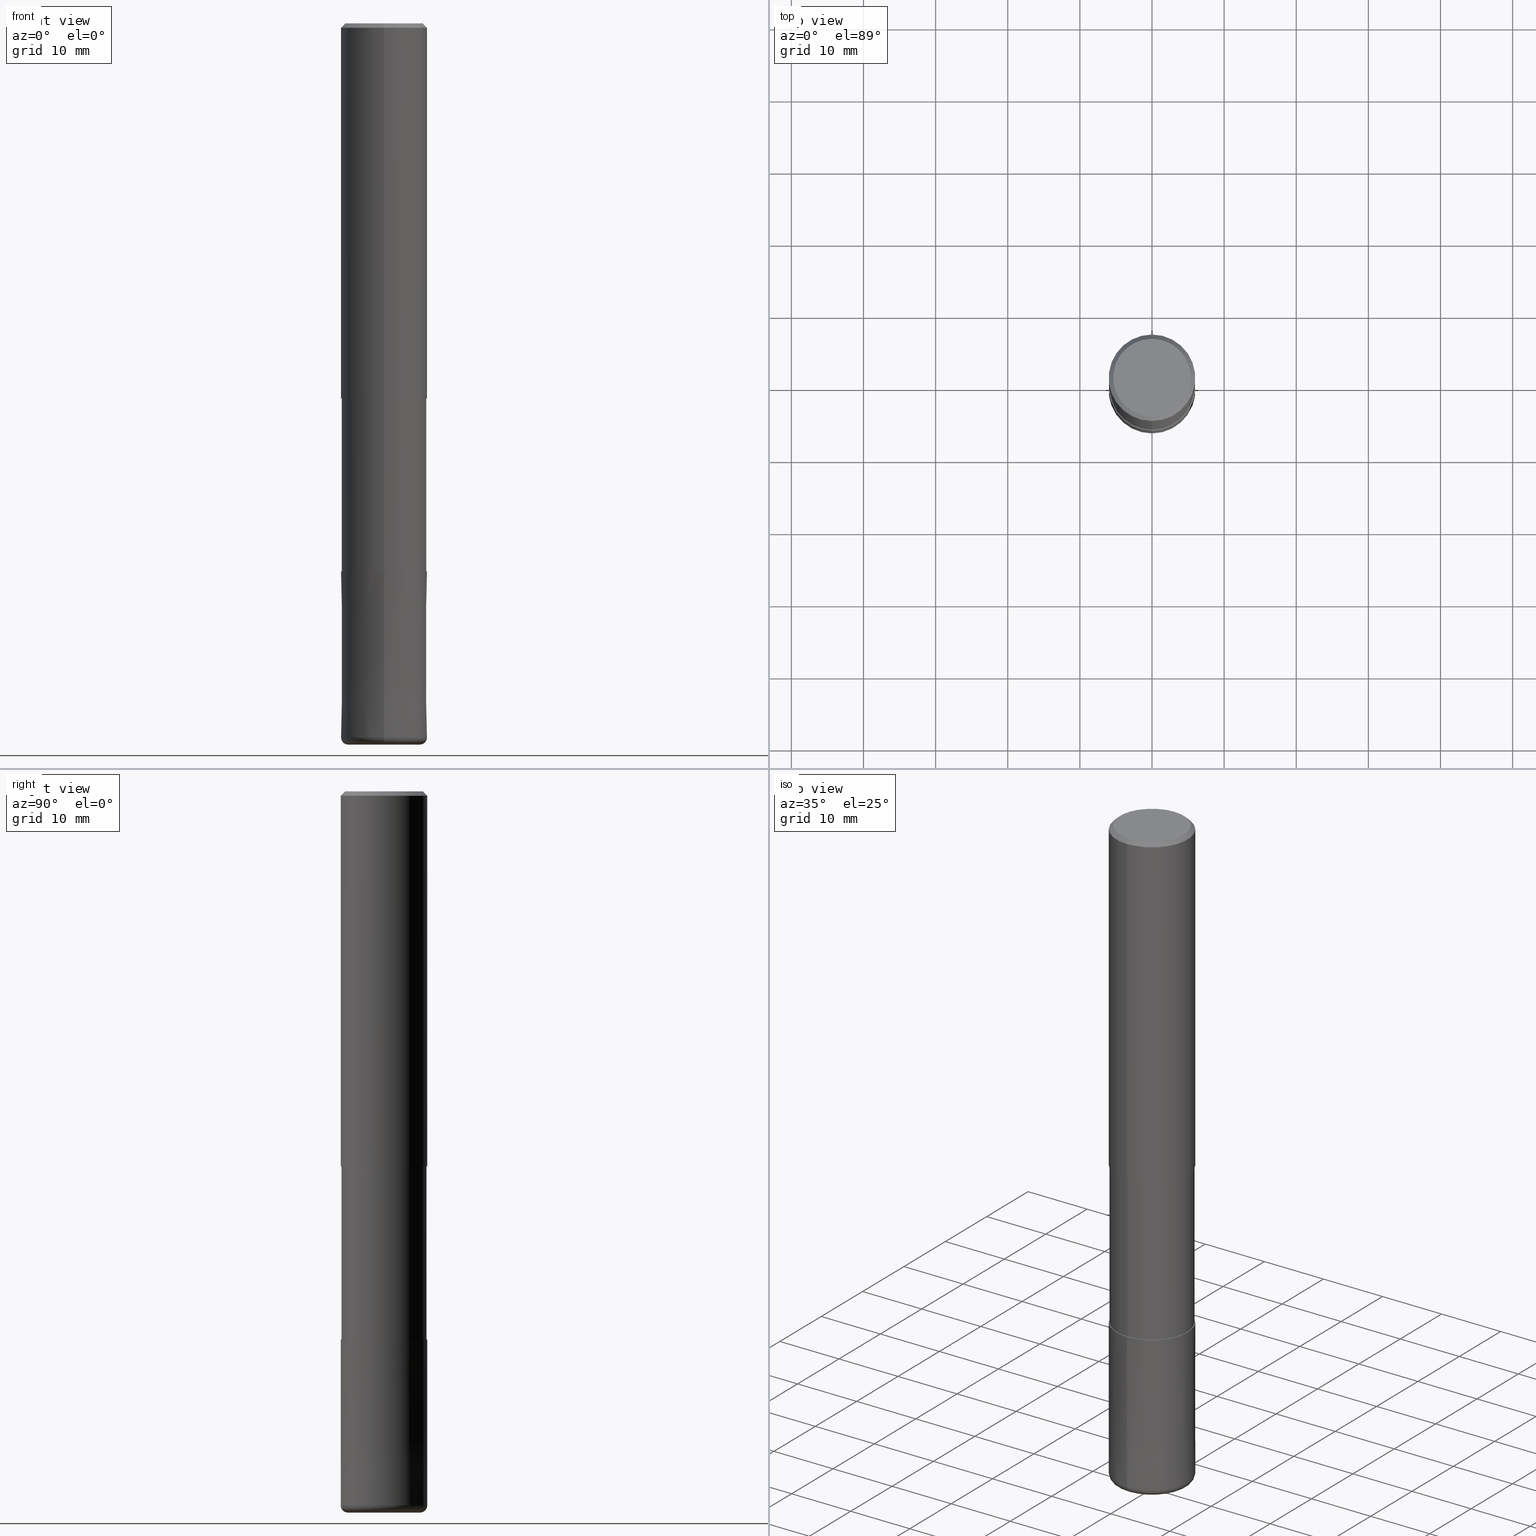
[diagram: canonical four-view strip — front | top / right | iso, engineering-drawing reading convention]
A machine part, canonical four-view strip (front | top / right | iso — engineering-drawing reading convention). The complete STEP part file that produces these views, byte-faithful:
ISO-10303-21;
HEADER;
FILE_DESCRIPTION(('no description'),'unknown implementation level');
FILE_NAME('CXLRS5120-10-48-Huellk.stp','  ',('CIMSOURCE GmbH'),('CADClick - KiM GmbH - www.kimweb.de'),'unknown preprocess','ACIS','unknown authorization');
FILE_SCHEMA(('automotive_design'));
ENDSEC;
DATA;
#1=MECHANICAL_DESIGN_GEOMETRIC_PRESENTATION_REPRESENTATION(' ',(#14,#15,#16,#17,#18,#19,#20,#21,#22,#23,#24,#25,#26,#27,#28,#29,#30,#31,#32,#33,#34,#35,#36,#37,#38,#39,#40,#41,#42,#43,#44,#45,#46,#47,#48,#49,#50,#51,#52,#53,#54,#55,#56,#57,#58,#59,#60,#61,#62,#63,#64,#65,#66,#67,#68,#69,#70,#71,#72,#73,#74,#75,#76,#77,#78,#79,#80,#81,#82,#83,#84,#85,#86,#87,#88,#89,#90,#91,#92,#93,#94,#95,#96,#97),#10);
#2=PRODUCT_DEFINITION_CONTEXT('',#98,'design');
#3=APPLICATION_PROTOCOL_DEFINITION('INTERNATIONAL STANDARD','automotive_design',1994,#98);
#4=PRODUCT_CATEGORY_RELATIONSHIP('NONE','NONE',#99,#100);
#5=SHAPE_DEFINITION_REPRESENTATION(#101,#102);
#6=PRODUCT_DEFINITION_CONTEXT('',#103,'design');
#7=APPLICATION_PROTOCOL_DEFINITION('INTERNATIONAL STANDARD','automotive_design',1994,#103);
#8=PRODUCT_CATEGORY_RELATIONSHIP('NONE','NONE',#104,#105);
#9=SHAPE_DEFINITION_REPRESENTATION(#106,#107);
#10= (GEOMETRIC_REPRESENTATION_CONTEXT(3)GLOBAL_UNCERTAINTY_ASSIGNED_CONTEXT((#110))GLOBAL_UNIT_ASSIGNED_CONTEXT((#112,#113,#114))REPRESENTATION_CONTEXT('NONE','WORKSPACE'));
#14=STYLED_ITEM('',(#116),#117);
#15=STYLED_ITEM('',(#118),#119);
#16=STYLED_ITEM('',(#120),#121);
#17=STYLED_ITEM('',(#122),#123);
#18=STYLED_ITEM('',(#124),#125);
#19=STYLED_ITEM('',(#126),#127);
#20=STYLED_ITEM('',(#128),#129);
#21=STYLED_ITEM('',(#130),#131);
#22=STYLED_ITEM('',(#132),#133);
#23=STYLED_ITEM('',(#134),#135);
#24=STYLED_ITEM('',(#136),#137);
#25=STYLED_ITEM('',(#138),#139);
#26=STYLED_ITEM('',(#140),#141);
#27=STYLED_ITEM('',(#142),#143);
#28=STYLED_ITEM('',(#144),#145);
#29=STYLED_ITEM('',(#146),#147);
#30=STYLED_ITEM('',(#148),#149);
#31=STYLED_ITEM('',(#150),#151);
#32=STYLED_ITEM('',(#152),#153);
#33=STYLED_ITEM('',(#154),#155);
#34=STYLED_ITEM('',(#156),#157);
#35=STYLED_ITEM('',(#158),#159);
#36=STYLED_ITEM('',(#160),#161);
#37=STYLED_ITEM('',(#162),#163);
#38=STYLED_ITEM('',(#164),#165);
#39=STYLED_ITEM('',(#166),#167);
#40=STYLED_ITEM('',(#168),#169);
#41=STYLED_ITEM('',(#170),#171);
#42=STYLED_ITEM('',(#172),#173);
#43=STYLED_ITEM('',(#174),#175);
#44=STYLED_ITEM('',(#176),#177);
#45=STYLED_ITEM('',(#178),#179);
#46=STYLED_ITEM('',(#180),#181);
#47=STYLED_ITEM('',(#182),#183);
#48=STYLED_ITEM('',(#184),#185);
#49=STYLED_ITEM('',(#186),#187);
#50=STYLED_ITEM('',(#188),#189);
#51=STYLED_ITEM('',(#190),#191);
#52=STYLED_ITEM('',(#192),#193);
#53=STYLED_ITEM('',(#194),#195);
#54=STYLED_ITEM('',(#196),#197);
#55=STYLED_ITEM('',(#198),#199);
#56=STYLED_ITEM('',(#200),#201);
#57=STYLED_ITEM('',(#202),#203);
#58=STYLED_ITEM('',(#204),#205);
#59=STYLED_ITEM('',(#206),#207);
#60=STYLED_ITEM('',(#208),#209);
#61=STYLED_ITEM('',(#210),#211);
#62=STYLED_ITEM('',(#212),#213);
#63=STYLED_ITEM('',(#214),#215);
#64=STYLED_ITEM('',(#216),#217);
#65=STYLED_ITEM('',(#218),#219);
#66=STYLED_ITEM('',(#220),#221);
#67=STYLED_ITEM('',(#222),#223);
#68=STYLED_ITEM('',(#224),#225);
#69=STYLED_ITEM('',(#226),#227);
#70=STYLED_ITEM('',(#228),#229);
#71=STYLED_ITEM('',(#230),#231);
#72=STYLED_ITEM('',(#232),#233);
#73=STYLED_ITEM('',(#234),#235);
#74=STYLED_ITEM('',(#236),#237);
#75=STYLED_ITEM('',(#238),#239);
#76=STYLED_ITEM('',(#240),#241);
#77=STYLED_ITEM('',(#242),#243);
#78=STYLED_ITEM('',(#244),#245);
#79=STYLED_ITEM('',(#246),#247);
#80=STYLED_ITEM('',(#248),#249);
#81=STYLED_ITEM('',(#250),#251);
#82=STYLED_ITEM('',(#252),#253);
#83=STYLED_ITEM('',(#254),#255);
#84=STYLED_ITEM('',(#256),#257);
#85=STYLED_ITEM('',(#258),#259);
#86=STYLED_ITEM('',(#260),#261);
#87=STYLED_ITEM('',(#262),#263);
#88=STYLED_ITEM('',(#264),#265);
#89=STYLED_ITEM('',(#266),#267);
#90=STYLED_ITEM('',(#268),#269);
#91=STYLED_ITEM('',(#270),#271);
#92=STYLED_ITEM('',(#272),#273);
#93=STYLED_ITEM('',(#274),#275);
#94=STYLED_ITEM('',(#276),#277);
#95=STYLED_ITEM('',(#278),#279);
#96=STYLED_ITEM('',(#280),#281);
#97=STYLED_ITEM('',(#282),#283);
#98=APPLICATION_CONTEXT(' ');
#99=PRODUCT_CATEGORY('part','NONE');
#100=PRODUCT_RELATED_PRODUCT_CATEGORY('detail',' ',(#284));
#101=PRODUCT_DEFINITION_SHAPE('NONE','NONE',#285);
#102=ADVANCED_BREP_SHAPE_REPRESENTATION('1',(#273,#286),#10);
#103=APPLICATION_CONTEXT(' ');
#104=PRODUCT_CATEGORY('part','NONE');
#105=PRODUCT_RELATED_PRODUCT_CATEGORY('detail',' ',(#287));
#106=PRODUCT_DEFINITION_SHAPE('NONE','NONE',#288);
#107=ADVANCED_BREP_SHAPE_REPRESENTATION('2',(#213,#289),#10);
#110=UNCERTAINTY_MEASURE_WITH_UNIT(LENGTH_MEASURE(1.0E-006),#112,'','');
#112= (CONVERSION_BASED_UNIT('MILLIMETRE',#292)LENGTH_UNIT()NAMED_UNIT(#295));
#113= (NAMED_UNIT(#297)PLANE_ANGLE_UNIT()SI_UNIT($,.RADIAN.));
#114= (NAMED_UNIT(#297)SOLID_ANGLE_UNIT()SI_UNIT($,.STERADIAN.));
#116=PRESENTATION_STYLE_ASSIGNMENT((#303));
#117=ADVANCED_FACE('',(#304),#305,.T.);
#118=PRESENTATION_STYLE_ASSIGNMENT((#306));
#119=EDGE_CURVE('',#261,#245,#307,.T.);
#120=PRESENTATION_STYLE_ASSIGNMENT((#308));
#121=EDGE_CURVE('',#197,#163,#309,.T.);
#122=PRESENTATION_STYLE_ASSIGNMENT((#310));
#123=VERTEX_POINT('',#311);
#124=PRESENTATION_STYLE_ASSIGNMENT((#312));
#125=EDGE_CURVE('',#129,#261,#313,.T.);
#126=PRESENTATION_STYLE_ASSIGNMENT((#314));
#127=EDGE_CURVE('',#147,#159,#315,.T.);
#128=PRESENTATION_STYLE_ASSIGNMENT((#316));
#129=VERTEX_POINT('',#317);
#130=PRESENTATION_STYLE_ASSIGNMENT((#318));
#131=VERTEX_POINT('',#319);
#132=PRESENTATION_STYLE_ASSIGNMENT((#320));
#133=EDGE_CURVE('',#275,#181,#321,.T.);
#134=PRESENTATION_STYLE_ASSIGNMENT((#322));
#135=VERTEX_POINT('',#323);
#136=PRESENTATION_STYLE_ASSIGNMENT((#324));
#137=EDGE_CURVE('',#155,#139,#325,.T.);
#138=PRESENTATION_STYLE_ASSIGNMENT((#326));
#139=VERTEX_POINT('',#327);
#140=PRESENTATION_STYLE_ASSIGNMENT((#328));
#141=EDGE_CURVE('',#123,#245,#329,.T.);
#142=PRESENTATION_STYLE_ASSIGNMENT((#330));
#143=ADVANCED_FACE('',(#331,#332),#333,.T.);
#144=PRESENTATION_STYLE_ASSIGNMENT((#334));
#145=EDGE_CURVE('',#153,#183,#335,.T.);
#146=PRESENTATION_STYLE_ASSIGNMENT((#336));
#147=VERTEX_POINT('',#337);
#148=PRESENTATION_STYLE_ASSIGNMENT((#338));
#149=EDGE_CURVE('',#199,#189,#339,.T.);
#150=PRESENTATION_STYLE_ASSIGNMENT((#340));
#151=EDGE_CURVE('',#139,#147,#341,.T.);
#152=PRESENTATION_STYLE_ASSIGNMENT((#342));
#153=VERTEX_POINT('',#343);
#154=PRESENTATION_STYLE_ASSIGNMENT((#344));
#155=VERTEX_POINT('',#345);
#156=PRESENTATION_STYLE_ASSIGNMENT((#346));
#157=ADVANCED_FACE('',(#347),#348,.T.);
#158=PRESENTATION_STYLE_ASSIGNMENT((#349));
#159=VERTEX_POINT('',#350);
#160=PRESENTATION_STYLE_ASSIGNMENT((#351));
#161=EDGE_CURVE('',#135,#173,#352,.T.);
#162=PRESENTATION_STYLE_ASSIGNMENT((#353));
#163=VERTEX_POINT('',#354);
#164=PRESENTATION_STYLE_ASSIGNMENT((#355));
#165=EDGE_CURVE('',#189,#181,#356,.T.);
#166=PRESENTATION_STYLE_ASSIGNMENT((#357));
#167=ADVANCED_FACE('',(#358),#359,.T.);
#168=PRESENTATION_STYLE_ASSIGNMENT((#360));
#169=ADVANCED_FACE('',(#361),#362,.T.);
#170=PRESENTATION_STYLE_ASSIGNMENT((#363));
#171=EDGE_CURVE('',#131,#187,#364,.T.);
#172=PRESENTATION_STYLE_ASSIGNMENT((#365));
#173=VERTEX_POINT('',#366);
#174=PRESENTATION_STYLE_ASSIGNMENT((#367));
#175=ADVANCED_FACE('',(#368),#369,.T.);
#176=PRESENTATION_STYLE_ASSIGNMENT((#370));
#177=ADVANCED_FACE('',(#371),#372,.F.);
#178=PRESENTATION_STYLE_ASSIGNMENT((#373));
#179=ADVANCED_FACE('',(#374,#375),#376,.T.);
#180=PRESENTATION_STYLE_ASSIGNMENT((#377));
#181=VERTEX_POINT('',#378);
#182=PRESENTATION_STYLE_ASSIGNMENT((#379));
#183=VERTEX_POINT('',#380);
#184=PRESENTATION_STYLE_ASSIGNMENT((#381));
#185=EDGE_CURVE('',#159,#147,#382,.T.);
#186=PRESENTATION_STYLE_ASSIGNMENT((#383));
#187=VERTEX_POINT('',#384);
#188=PRESENTATION_STYLE_ASSIGNMENT((#385));
#189=VERTEX_POINT('',#386);
#190=PRESENTATION_STYLE_ASSIGNMENT((#387));
#191=EDGE_CURVE('',#159,#251,#388,.T.);
#192=PRESENTATION_STYLE_ASSIGNMENT((#389));
#193=VERTEX_POINT('',#390);
#194=PRESENTATION_STYLE_ASSIGNMENT((#391));
#195=ADVANCED_FACE('',(#392),#393,.F.);
#196=PRESENTATION_STYLE_ASSIGNMENT((#394));
#197=VERTEX_POINT('',#395);
#198=PRESENTATION_STYLE_ASSIGNMENT((#396));
#199=VERTEX_POINT('',#397);
#200=PRESENTATION_STYLE_ASSIGNMENT((#398));
#201=EDGE_CURVE('',#163,#123,#399,.T.);
#202=PRESENTATION_STYLE_ASSIGNMENT((#400));
#203=EDGE_CURVE('',#255,#155,#401,.T.);
#204=PRESENTATION_STYLE_ASSIGNMENT((#402));
#205=ADVANCED_FACE('',(#403),#404,.T.);
#206=PRESENTATION_STYLE_ASSIGNMENT((#405));
#207=ADVANCED_FACE('',(#406,#407),#408,.T.);
#208=PRESENTATION_STYLE_ASSIGNMENT((#409));
#209=EDGE_CURVE('',#261,#129,#410,.T.);
#210=PRESENTATION_STYLE_ASSIGNMENT((#411));
#211=EDGE_CURVE('',#251,#139,#412,.T.);
#212=PRESENTATION_STYLE_ASSIGNMENT((#413));
#213=MANIFOLD_SOLID_BREP('2',#414);
#214=PRESENTATION_STYLE_ASSIGNMENT((#415));
#215=EDGE_CURVE('',#173,#135,#416,.T.);
#216=PRESENTATION_STYLE_ASSIGNMENT((#417));
#217=EDGE_CURVE('',#275,#199,#418,.T.);
#218=PRESENTATION_STYLE_ASSIGNMENT((#419));
#219=EDGE_CURVE('',#181,#275,#420,.T.);
#220=PRESENTATION_STYLE_ASSIGNMENT((#421));
#221=ADVANCED_FACE('',(#422),#423,.T.);
#222=PRESENTATION_STYLE_ASSIGNMENT((#424));
#223=ADVANCED_FACE('',(#425),#426,.T.);
#224=PRESENTATION_STYLE_ASSIGNMENT((#427));
#225=EDGE_CURVE('',#135,#183,#428,.T.);
#226=PRESENTATION_STYLE_ASSIGNMENT((#429));
#227=ADVANCED_FACE('',(#430),#431,.T.);
#228=PRESENTATION_STYLE_ASSIGNMENT((#432));
#229=ADVANCED_FACE('',(#433,#434),#435,.T.);
#230=PRESENTATION_STYLE_ASSIGNMENT((#436));
#231=EDGE_CURVE('',#197,#245,#437,.T.);
#232=PRESENTATION_STYLE_ASSIGNMENT((#438));
#233=EDGE_CURVE('',#251,#255,#439,.T.);
#234=PRESENTATION_STYLE_ASSIGNMENT((#440));
#235=ADVANCED_FACE('',(#441),#442,.T.);
#236=PRESENTATION_STYLE_ASSIGNMENT((#443));
#237=EDGE_CURVE('',#189,#199,#444,.T.);
#238=PRESENTATION_STYLE_ASSIGNMENT((#445));
#239=VERTEX_POINT('',#446);
#240=PRESENTATION_STYLE_ASSIGNMENT((#447));
#241=EDGE_CURVE('',#131,#193,#448,.T.);
#242=PRESENTATION_STYLE_ASSIGNMENT((#449));
#243=EDGE_CURVE('',#155,#255,#450,.T.);
#244=PRESENTATION_STYLE_ASSIGNMENT((#451));
#245=VERTEX_POINT('',#452);
#246=PRESENTATION_STYLE_ASSIGNMENT((#453));
#247=EDGE_CURVE('',#239,#193,#454,.T.);
#248=PRESENTATION_STYLE_ASSIGNMENT((#455));
#249=EDGE_CURVE('',#239,#187,#456,.T.);
#250=PRESENTATION_STYLE_ASSIGNMENT((#457));
#251=VERTEX_POINT('',#458);
#252=PRESENTATION_STYLE_ASSIGNMENT((#459));
#253=EDGE_CURVE('',#193,#239,#460,.T.);
#254=PRESENTATION_STYLE_ASSIGNMENT((#461));
#255=VERTEX_POINT('',#462);
#256=PRESENTATION_STYLE_ASSIGNMENT((#463));
#257=EDGE_CURVE('',#153,#173,#464,.T.);
#258=PRESENTATION_STYLE_ASSIGNMENT((#465));
#259=ADVANCED_FACE('',(#466),#467,.T.);
#260=PRESENTATION_STYLE_ASSIGNMENT((#468));
#261=VERTEX_POINT('',#469);
#262=PRESENTATION_STYLE_ASSIGNMENT((#470));
#263=ADVANCED_FACE('',(#471),#472,.T.);
#264=PRESENTATION_STYLE_ASSIGNMENT((#473));
#265=EDGE_CURVE('',#123,#163,#474,.T.);
#266=PRESENTATION_STYLE_ASSIGNMENT((#475));
#267=ADVANCED_FACE('',(#476),#477,.T.);
#268=PRESENTATION_STYLE_ASSIGNMENT((#478));
#269=ADVANCED_FACE('',(#479),#480,.T.);
#270=PRESENTATION_STYLE_ASSIGNMENT((#481));
#271=EDGE_CURVE('',#183,#153,#482,.T.);
#272=PRESENTATION_STYLE_ASSIGNMENT((#483));
#273=MANIFOLD_SOLID_BREP('1',#484);
#274=PRESENTATION_STYLE_ASSIGNMENT((#485));
#275=VERTEX_POINT('',#486);
#276=PRESENTATION_STYLE_ASSIGNMENT((#487));
#277=EDGE_CURVE('',#245,#197,#488,.T.);
#278=PRESENTATION_STYLE_ASSIGNMENT((#489));
#279=EDGE_CURVE('',#139,#251,#490,.T.);
#280=PRESENTATION_STYLE_ASSIGNMENT((#491));
#281=EDGE_CURVE('',#187,#131,#492,.T.);
#282=PRESENTATION_STYLE_ASSIGNMENT((#493));
#283=EDGE_CURVE('',#197,#129,#494,.T.);
#284=PRODUCT('1','1','PART-1-DESC',(#495));
#285=PRODUCT_DEFINITION('NONE','NONE',#496,#2);
#286=AXIS2_PLACEMENT_3D('',#497,#498,#499);
#287=PRODUCT('2','2','PART-2-DESC',(#500));
#288=PRODUCT_DEFINITION('NONE','NONE',#501,#6);
#289=AXIS2_PLACEMENT_3D('',#502,#503,#504);
#292=LENGTH_MEASURE_WITH_UNIT(LENGTH_MEASURE(1.0),#505);
#295=DIMENSIONAL_EXPONENTS(1.0,0.0,0.0,0.0,0.0,0.0,0.0);
#297=DIMENSIONAL_EXPONENTS(0.0,0.0,0.0,0.0,0.0,0.0,0.0);
#303=SURFACE_STYLE_USAGE(.BOTH.,#506);
#304=FACE_OUTER_BOUND('',#507,.T.);
#305=CYLINDRICAL_SURFACE('',#508,5.89995);
#306=CURVE_STYLE('',#509,POSITIVE_LENGTH_MEASURE(1.0E-006),#510);
#307=LINE('',#511,#512);
#308=CURVE_STYLE('',#513,POSITIVE_LENGTH_MEASURE(1.0E-006),#514);
#309=CIRCLE('',#515,0.999999999999989);
#310=POINT_STYLE(' ',#516,POSITIVE_LENGTH_MEASURE(1.0E-006),#517);
#311=CARTESIAN_POINT('',(0.0,5.0,-100.0));
#312=CURVE_STYLE('',#518,POSITIVE_LENGTH_MEASURE(1.0E-006),#519);
#313=CIRCLE('',#520,5.9999);
#314=CURVE_STYLE('',#521,POSITIVE_LENGTH_MEASURE(1.0E-006),#522);
#315=CIRCLE('',#523,6.0);
#316=POINT_STYLE(' ',#524,POSITIVE_LENGTH_MEASURE(1.0E-006),#525);
#317=CARTESIAN_POINT('',(7.34751566229888E-016,-5.9999,-76.0));
#318=POINT_STYLE(' ',#526,POSITIVE_LENGTH_MEASURE(1.0E-006),#527);
#319=CARTESIAN_POINT('',(7.22511625723433E-016,-5.89995,-76.0));
#320=CURVE_STYLE('',#528,POSITIVE_LENGTH_MEASURE(1.0E-006),#529);
#321=CIRCLE('',#530,2.7);
#322=POINT_STYLE(' ',#531,POSITIVE_LENGTH_MEASURE(1.0E-006),#532);
#323=CARTESIAN_POINT('',(3.30643715532042E-016,-2.7,-100.0));
#324=CURVE_STYLE('',#533,POSITIVE_LENGTH_MEASURE(1.0E-006),#534);
#325=LINE('',#535,#536);
#326=POINT_STYLE(' ',#537,POSITIVE_LENGTH_MEASURE(1.0E-006),#538);
#327=CARTESIAN_POINT('',(0.0,6.0,-0.600000000000001));
#328=CURVE_STYLE('',#539,POSITIVE_LENGTH_MEASURE(1.0E-006),#540);
#329=CIRCLE('',#541,0.999999999999989);
#330=SURFACE_STYLE_USAGE(.BOTH.,#542);
#331=FACE_BOUND('',#543,.T.);
#332=FACE_OUTER_BOUND('',#544,.T.);
#333=PLANE('',#545);
#334=CURVE_STYLE('',#546,POSITIVE_LENGTH_MEASURE(1.0E-006),#547);
#335=CIRCLE('',#548,2.7);
#336=POINT_STYLE(' ',#549,POSITIVE_LENGTH_MEASURE(1.0E-006),#550);
#337=CARTESIAN_POINT('',(0.0,6.0,-52.0));
#338=CURVE_STYLE('',#551,POSITIVE_LENGTH_MEASURE(1.0E-006),#552);
#339=CIRCLE('',#553,2.7);
#340=CURVE_STYLE('',#554,POSITIVE_LENGTH_MEASURE(1.0E-006),#555);
#341=LINE('',#556,#557);
#342=POINT_STYLE(' ',#558,POSITIVE_LENGTH_MEASURE(1.0E-006),#559);
#343=CARTESIAN_POINT('',(0.0,2.7,-76.0));
#344=POINT_STYLE(' ',#560,POSITIVE_LENGTH_MEASURE(1.0E-006),#561);
#345=CARTESIAN_POINT('',(0.0,5.4,0.0));
#346=SURFACE_STYLE_USAGE(.BOTH.,#562);
#347=FACE_OUTER_BOUND('',#563,.T.);
#348=CYLINDRICAL_SURFACE('',#564,2.7);
#349=POINT_STYLE(' ',#565,POSITIVE_LENGTH_MEASURE(1.0E-006),#566);
#350=CARTESIAN_POINT('',(7.34763812293426E-016,-6.0,-52.0));
#351=CURVE_STYLE('',#567,POSITIVE_LENGTH_MEASURE(1.0E-006),#568);
#352=CIRCLE('',#569,2.7);
#353=POINT_STYLE(' ',#570,POSITIVE_LENGTH_MEASURE(1.0E-006),#571);
#354=CARTESIAN_POINT('',(6.12303176911189E-016,-5.0,-100.0));
#355=CURVE_STYLE('',#572,POSITIVE_LENGTH_MEASURE(1.0E-006),#573);
#356=LINE('',#574,#575);
#357=SURFACE_STYLE_USAGE(.BOTH.,#576);
#358=FACE_OUTER_BOUND('',#577,.T.);
#359=CONICAL_SURFACE('',#578,5.7,0.785398163397447);
#360=SURFACE_STYLE_USAGE(.BOTH.,#579);
#361=FACE_OUTER_BOUND('',#580,.T.);
#362=PLANE('',#581);
#363=CURVE_STYLE('',#582,POSITIVE_LENGTH_MEASURE(1.0E-006),#583);
#364=CIRCLE('',#584,5.89995);
#365=POINT_STYLE(' ',#585,POSITIVE_LENGTH_MEASURE(1.0E-006),#586);
#366=CARTESIAN_POINT('',(0.0,2.7,-100.0));
#367=SURFACE_STYLE_USAGE(.BOTH.,#587);
#368=FACE_OUTER_BOUND('',#588,.T.);
#369=CYLINDRICAL_SURFACE('',#589,6.0);
#370=SURFACE_STYLE_USAGE(.BOTH.,#590);
#371=FACE_OUTER_BOUND('',#591,.T.);
#372=CYLINDRICAL_SURFACE('',#592,2.7);
#373=SURFACE_STYLE_USAGE(.BOTH.,#593);
#374=FACE_OUTER_BOUND('',#594,.T.);
#375=FACE_BOUND('',#595,.T.);
#376=PLANE('',#596);
#377=POINT_STYLE(' ',#597,POSITIVE_LENGTH_MEASURE(1.0E-006),#598);
#378=CARTESIAN_POINT('',(0.0,2.7,-99.76));
#379=POINT_STYLE(' ',#599,POSITIVE_LENGTH_MEASURE(1.0E-006),#600);
#380=CARTESIAN_POINT('',(3.30643715532042E-016,-2.7,-76.0));
#381=CURVE_STYLE('',#601,POSITIVE_LENGTH_MEASURE(1.0E-006),#602);
#382=CIRCLE('',#603,6.0);
#383=POINT_STYLE(' ',#604,POSITIVE_LENGTH_MEASURE(1.0E-006),#605);
#384=CARTESIAN_POINT('',(0.0,5.89995,-76.0));
#385=POINT_STYLE(' ',#606,POSITIVE_LENGTH_MEASURE(1.0E-006),#607);
#386=CARTESIAN_POINT('',(0.0,2.7,-76.0));
#387=CURVE_STYLE('',#608,POSITIVE_LENGTH_MEASURE(1.0E-006),#609);
#388=LINE('',#610,#611);
#389=POINT_STYLE(' ',#612,POSITIVE_LENGTH_MEASURE(1.0E-006),#613);
#390=CARTESIAN_POINT('',(7.22511625723433E-016,-5.89995,-52.0));
#391=SURFACE_STYLE_USAGE(.BOTH.,#614);
#392=FACE_OUTER_BOUND('',#615,.T.);
#393=CYLINDRICAL_SURFACE('',#616,2.7);
#394=POINT_STYLE(' ',#617,POSITIVE_LENGTH_MEASURE(1.0E-006),#618);
#395=CARTESIAN_POINT('',(7.34763812293426E-016,-6.0,-99.0));
#396=POINT_STYLE(' ',#619,POSITIVE_LENGTH_MEASURE(1.0E-006),#620);
#397=CARTESIAN_POINT('',(3.30643715532042E-016,-2.7,-76.0));
#398=CURVE_STYLE('',#621,POSITIVE_LENGTH_MEASURE(1.0E-006),#622);
#399=CIRCLE('',#623,5.0);
#400=CURVE_STYLE('',#624,POSITIVE_LENGTH_MEASURE(1.0E-006),#625);
#401=CIRCLE('',#626,5.4);
#402=SURFACE_STYLE_USAGE(.BOTH.,#627);
#403=FACE_OUTER_BOUND('',#628,.T.);
#404=TOROIDAL_SURFACE('',#629,5.00000000000001,0.999999999999989);
#405=SURFACE_STYLE_USAGE(.BOTH.,#630);
#406=FACE_BOUND('',#631,.T.);
#407=FACE_OUTER_BOUND('',#632,.T.);
#408=PLANE('',#633);
#409=CURVE_STYLE('',#634,POSITIVE_LENGTH_MEASURE(1.0E-006),#635);
#410=CIRCLE('',#636,5.9999);
#411=CURVE_STYLE('',#637,POSITIVE_LENGTH_MEASURE(1.0E-006),#638);
#412=CIRCLE('',#639,6.0);
#413=SURFACE_STYLE_USAGE(.BOTH.,#640);
#414=CLOSED_SHELL('',(#177,#205,#269,#179,#223,#267,#143,#195));
#415=CURVE_STYLE('',#641,POSITIVE_LENGTH_MEASURE(1.0E-006),#642);
#416=CIRCLE('',#643,2.7);
#417=CURVE_STYLE('',#644,POSITIVE_LENGTH_MEASURE(1.0E-006),#645);
#418=LINE('',#646,#647);
#419=CURVE_STYLE('',#648,POSITIVE_LENGTH_MEASURE(1.0E-006),#649);
#420=CIRCLE('',#650,2.7);
#421=SURFACE_STYLE_USAGE(.BOTH.,#651);
#422=FACE_OUTER_BOUND('',#652,.T.);
#423=CYLINDRICAL_SURFACE('',#653,5.89995);
#424=SURFACE_STYLE_USAGE(.BOTH.,#654);
#425=FACE_OUTER_BOUND('',#655,.T.);
#426=CONICAL_SURFACE('',#656,5.99995,4.34782608691899E-006);
#427=CURVE_STYLE('',#657,POSITIVE_LENGTH_MEASURE(1.0E-006),#658);
#428=LINE('',#659,#660);
#429=SURFACE_STYLE_USAGE(.BOTH.,#661);
#430=FACE_OUTER_BOUND('',#662,.T.);
#431=CYLINDRICAL_SURFACE('',#663,2.7);
#432=SURFACE_STYLE_USAGE(.BOTH.,#664);
#433=FACE_OUTER_BOUND('',#665,.T.);
#434=FACE_BOUND('',#666,.T.);
#435=PLANE('',#667);
#436=CURVE_STYLE('',#668,POSITIVE_LENGTH_MEASURE(1.0E-006),#669);
#437=CIRCLE('',#670,6.0);
#438=CURVE_STYLE('',#671,POSITIVE_LENGTH_MEASURE(1.0E-006),#672);
#439=LINE('',#673,#674);
#440=SURFACE_STYLE_USAGE(.BOTH.,#675);
#441=FACE_OUTER_BOUND('',#676,.T.);
#442=CYLINDRICAL_SURFACE('',#677,6.0);
#443=CURVE_STYLE('',#678,POSITIVE_LENGTH_MEASURE(1.0E-006),#679);
#444=CIRCLE('',#680,2.7);
#445=POINT_STYLE(' ',#681,POSITIVE_LENGTH_MEASURE(1.0E-006),#682);
#446=CARTESIAN_POINT('',(0.0,5.89995,-52.0));
#447=CURVE_STYLE('',#683,POSITIVE_LENGTH_MEASURE(1.0E-006),#684);
#448=LINE('',#685,#686);
#449=CURVE_STYLE('',#687,POSITIVE_LENGTH_MEASURE(1.0E-006),#688);
#450=CIRCLE('',#689,5.4);
#451=POINT_STYLE(' ',#690,POSITIVE_LENGTH_MEASURE(1.0E-006),#691);
#452=CARTESIAN_POINT('',(0.0,6.0,-99.0));
#453=CURVE_STYLE('',#692,POSITIVE_LENGTH_MEASURE(1.0E-006),#693);
#454=CIRCLE('',#694,5.89995);
#455=CURVE_STYLE('',#695,POSITIVE_LENGTH_MEASURE(1.0E-006),#696);
#456=LINE('',#697,#698);
#457=POINT_STYLE(' ',#699,POSITIVE_LENGTH_MEASURE(1.0E-006),#700);
#458=CARTESIAN_POINT('',(7.34763812293426E-016,-6.0,-0.600000000000001));
#459=CURVE_STYLE('',#701,POSITIVE_LENGTH_MEASURE(1.0E-006),#702);
#460=CIRCLE('',#703,5.89995);
#461=POINT_STYLE(' ',#704,POSITIVE_LENGTH_MEASURE(1.0E-006),#705);
#462=CARTESIAN_POINT('',(6.61287431064084E-016,-5.4,0.0));
#463=CURVE_STYLE('',#706,POSITIVE_LENGTH_MEASURE(1.0E-006),#707);
#464=LINE('',#708,#709);
#465=SURFACE_STYLE_USAGE(.BOTH.,#710);
#466=FACE_OUTER_BOUND('',#711,.T.);
#467=PLANE('',#712);
#468=POINT_STYLE(' ',#713,POSITIVE_LENGTH_MEASURE(1.0E-006),#714);
#469=CARTESIAN_POINT('',(0.0,5.9999,-76.0));
#470=SURFACE_STYLE_USAGE(.BOTH.,#715);
#471=FACE_OUTER_BOUND('',#716,.T.);
#472=CONICAL_SURFACE('',#717,5.7,0.785398163397447);
#473=CURVE_STYLE('',#718,POSITIVE_LENGTH_MEASURE(1.0E-006),#719);
#474=CIRCLE('',#720,5.0);
#475=SURFACE_STYLE_USAGE(.BOTH.,#721);
#476=FACE_OUTER_BOUND('',#722,.T.);
#477=TOROIDAL_SURFACE('',#723,5.00000000000001,0.999999999999989);
#478=SURFACE_STYLE_USAGE(.BOTH.,#724);
#479=FACE_OUTER_BOUND('',#725,.T.);
#480=CONICAL_SURFACE('',#726,5.99995,4.34782608691899E-006);
#481=CURVE_STYLE('',#727,POSITIVE_LENGTH_MEASURE(1.0E-006),#728);
#482=CIRCLE('',#729,2.7);
#483=SURFACE_STYLE_USAGE(.BOTH.,#730);
#484=CLOSED_SHELL('',(#157,#117,#235,#263,#229,#169,#167,#175,#221,#207,#227,#259));
#485=POINT_STYLE(' ',#731,POSITIVE_LENGTH_MEASURE(1.0E-006),#732);
#486=CARTESIAN_POINT('',(3.30643715532042E-016,-2.7,-99.76));
#487=CURVE_STYLE('',#733,POSITIVE_LENGTH_MEASURE(1.0E-006),#734);
#488=CIRCLE('',#735,6.0);
#489=CURVE_STYLE('',#736,POSITIVE_LENGTH_MEASURE(1.0E-006),#737);
#490=CIRCLE('',#738,6.0);
#491=CURVE_STYLE('',#739,POSITIVE_LENGTH_MEASURE(1.0E-006),#740);
#492=CIRCLE('',#741,5.89995);
#493=CURVE_STYLE('',#742,POSITIVE_LENGTH_MEASURE(1.0E-006),#743);
#494=LINE('',#744,#745);
#495=PRODUCT_CONTEXT('',#98,'mechanical');
#496=PRODUCT_DEFINITION_FORMATION_WITH_SPECIFIED_SOURCE(' ','NONE',#284,.NOT_KNOWN.);
#497=CARTESIAN_POINT('',(0.0,0.0,0.0));
#498=DIRECTION('',(0.0,0.0,1.0));
#499=DIRECTION('',(1.0,0.0,0.0));
#500=PRODUCT_CONTEXT('',#103,'mechanical');
#501=PRODUCT_DEFINITION_FORMATION_WITH_SPECIFIED_SOURCE(' ','NONE',#287,.NOT_KNOWN.);
#502=CARTESIAN_POINT('',(0.0,0.0,0.0));
#503=DIRECTION('',(0.0,0.0,1.0));
#504=DIRECTION('',(1.0,0.0,0.0));
#505= (NAMED_UNIT(#295)LENGTH_UNIT()SI_UNIT(.MILLI.,.METRE.));
#506=SURFACE_SIDE_STYLE('',(#747));
#507=EDGE_LOOP('',(#748,#749,#750,#751));
#508=AXIS2_PLACEMENT_3D('',#752,#753,#754);
#509=DRAUGHTING_PRE_DEFINED_CURVE_FONT('continuous');
#510=COLOUR_RGB('',0.800000011920929,0.800000011920929,0.800000011920929);
#511=CARTESIAN_POINT('',(-7.34757689261657E-016,5.99995,-87.5));
#512=VECTOR('',#755,1.0);
#513=DRAUGHTING_PRE_DEFINED_CURVE_FONT('continuous');
#514=COLOUR_RGB('',0.800000011920929,0.800000011920929,0.800000011920929);
#515=AXIS2_PLACEMENT_3D('',#756,#757,#758);
#516=PRE_DEFINED_MARKER('');
#517=COLOUR_RGB('',0.800000011920929,0.800000011920929,0.800000011920929);
#518=DRAUGHTING_PRE_DEFINED_CURVE_FONT('continuous');
#519=COLOUR_RGB('',0.800000011920929,0.800000011920929,0.800000011920929);
#520=AXIS2_PLACEMENT_3D('',#759,#760,#761);
#521=DRAUGHTING_PRE_DEFINED_CURVE_FONT('continuous');
#522=COLOUR_RGB('',0.498039215803146,0.498039215803146,0.498039215803146);
#523=AXIS2_PLACEMENT_3D('',#762,#763,#764);
#524=PRE_DEFINED_MARKER('');
#525=COLOUR_RGB('',0.800000011920929,0.800000011920929,0.800000011920929);
#526=PRE_DEFINED_MARKER('');
#527=COLOUR_RGB('',0.498039215803146,0.498039215803146,0.498039215803146);
#528=DRAUGHTING_PRE_DEFINED_CURVE_FONT('continuous');
#529=COLOUR_RGB('',0.498039215803146,0.498039215803146,0.498039215803146);
#530=AXIS2_PLACEMENT_3D('',#765,#766,#767);
#531=PRE_DEFINED_MARKER('');
#532=COLOUR_RGB('',0.800000011920929,0.800000011920929,0.800000011920929);
#533=DRAUGHTING_PRE_DEFINED_CURVE_FONT('continuous');
#534=COLOUR_RGB('',0.498039215803146,0.498039215803146,0.498039215803146);
#535=CARTESIAN_POINT('',(-6.98025621678755E-016,5.7,-0.300000000000004));
#536=VECTOR('',#768,1.0);
#537=PRE_DEFINED_MARKER('');
#538=COLOUR_RGB('',0.498039215803146,0.498039215803146,0.498039215803146);
#539=DRAUGHTING_PRE_DEFINED_CURVE_FONT('continuous');
#540=COLOUR_RGB('',0.800000011920929,0.800000011920929,0.800000011920929);
#541=AXIS2_PLACEMENT_3D('',#769,#770,#771);
#542=SURFACE_SIDE_STYLE('',(#772));
#543=EDGE_LOOP('',(#773,#774));
#544=EDGE_LOOP('',(#775,#776));
#545=AXIS2_PLACEMENT_3D('',#777,#778,#779);
#546=DRAUGHTING_PRE_DEFINED_CURVE_FONT('continuous');
#547=COLOUR_RGB('',0.800000011920929,0.800000011920929,0.800000011920929);
#548=AXIS2_PLACEMENT_3D('',#780,#781,#782);
#549=PRE_DEFINED_MARKER('');
#550=COLOUR_RGB('',0.498039215803146,0.498039215803146,0.498039215803146);
#551=DRAUGHTING_PRE_DEFINED_CURVE_FONT('continuous');
#552=COLOUR_RGB('',0.498039215803146,0.498039215803146,0.498039215803146);
#553=AXIS2_PLACEMENT_3D('',#783,#784,#785);
#554=DRAUGHTING_PRE_DEFINED_CURVE_FONT('continuous');
#555=COLOUR_RGB('',0.498039215803146,0.498039215803146,0.498039215803146);
#556=CARTESIAN_POINT('',(-7.34763812293426E-016,6.0,-26.3));
#557=VECTOR('',#786,1.0);
#558=PRE_DEFINED_MARKER('');
#559=COLOUR_RGB('',0.800000011920929,0.800000011920929,0.800000011920929);
#560=PRE_DEFINED_MARKER('');
#561=COLOUR_RGB('',0.498039215803146,0.498039215803146,0.498039215803146);
#562=SURFACE_SIDE_STYLE('',(#787));
#563=EDGE_LOOP('',(#788,#789,#790,#791));
#564=AXIS2_PLACEMENT_3D('',#792,#793,#794);
#565=PRE_DEFINED_MARKER('');
#566=COLOUR_RGB('',0.498039215803146,0.498039215803146,0.498039215803146);
#567=DRAUGHTING_PRE_DEFINED_CURVE_FONT('continuous');
#568=COLOUR_RGB('',0.800000011920929,0.800000011920929,0.800000011920929);
#569=AXIS2_PLACEMENT_3D('',#795,#796,#797);
#570=PRE_DEFINED_MARKER('');
#571=COLOUR_RGB('',0.800000011920929,0.800000011920929,0.800000011920929);
#572=DRAUGHTING_PRE_DEFINED_CURVE_FONT('continuous');
#573=COLOUR_RGB('',0.498039215803146,0.498039215803146,0.498039215803146);
#574=CARTESIAN_POINT('',(-3.30643715532042E-016,2.7,-87.88));
#575=VECTOR('',#798,1.0);
#576=SURFACE_SIDE_STYLE('',(#799));
#577=EDGE_LOOP('',(#800,#801,#802,#803));
#578=AXIS2_PLACEMENT_3D('',#804,#805,#806);
#579=SURFACE_SIDE_STYLE('',(#807));
#580=EDGE_LOOP('',(#808,#809));
#581=AXIS2_PLACEMENT_3D('',#810,#811,#812);
#582=DRAUGHTING_PRE_DEFINED_CURVE_FONT('continuous');
#583=COLOUR_RGB('',0.498039215803146,0.498039215803146,0.498039215803146);
#584=AXIS2_PLACEMENT_3D('',#813,#814,#815);
#585=PRE_DEFINED_MARKER('');
#586=COLOUR_RGB('',0.800000011920929,0.800000011920929,0.800000011920929);
#587=SURFACE_SIDE_STYLE('',(#816));
#588=EDGE_LOOP('',(#817,#818,#819,#820));
#589=AXIS2_PLACEMENT_3D('',#821,#822,#823);
#590=SURFACE_SIDE_STYLE('',(#824));
#591=EDGE_LOOP('',(#825,#826,#827,#828));
#592=AXIS2_PLACEMENT_3D('',#829,#830,#831);
#593=SURFACE_SIDE_STYLE('',(#832));
#594=EDGE_LOOP('',(#833,#834));
#595=EDGE_LOOP('',(#835,#836));
#596=AXIS2_PLACEMENT_3D('',#837,#838,#839);
#597=PRE_DEFINED_MARKER('');
#598=COLOUR_RGB('',0.498039215803146,0.498039215803146,0.498039215803146);
#599=PRE_DEFINED_MARKER('');
#600=COLOUR_RGB('',0.800000011920929,0.800000011920929,0.800000011920929);
#601=DRAUGHTING_PRE_DEFINED_CURVE_FONT('continuous');
#602=COLOUR_RGB('',0.498039215803146,0.498039215803146,0.498039215803146);
#603=AXIS2_PLACEMENT_3D('',#840,#841,#842);
#604=PRE_DEFINED_MARKER('');
#605=COLOUR_RGB('',0.498039215803146,0.498039215803146,0.498039215803146);
#606=PRE_DEFINED_MARKER('');
#607=COLOUR_RGB('',0.498039215803146,0.498039215803146,0.498039215803146);
#608=DRAUGHTING_PRE_DEFINED_CURVE_FONT('continuous');
#609=COLOUR_RGB('',0.498039215803146,0.498039215803146,0.498039215803146);
#610=CARTESIAN_POINT('',(7.34763812293426E-016,-6.0,-26.3));
#611=VECTOR('',#843,1.0);
#612=PRE_DEFINED_MARKER('');
#613=COLOUR_RGB('',0.498039215803146,0.498039215803146,0.498039215803146);
#614=SURFACE_SIDE_STYLE('',(#844));
#615=EDGE_LOOP('',(#845,#846,#847,#848));
#616=AXIS2_PLACEMENT_3D('',#849,#850,#851);
#617=PRE_DEFINED_MARKER('');
#618=COLOUR_RGB('',0.800000011920929,0.800000011920929,0.800000011920929);
#619=PRE_DEFINED_MARKER('');
#620=COLOUR_RGB('',0.498039215803146,0.498039215803146,0.498039215803146);
#621=DRAUGHTING_PRE_DEFINED_CURVE_FONT('continuous');
#622=COLOUR_RGB('',0.800000011920929,0.800000011920929,0.800000011920929);
#623=AXIS2_PLACEMENT_3D('',#852,#853,#854);
#624=DRAUGHTING_PRE_DEFINED_CURVE_FONT('continuous');
#625=COLOUR_RGB('',0.498039215803146,0.498039215803146,0.498039215803146);
#626=AXIS2_PLACEMENT_3D('',#855,#856,#857);
#627=SURFACE_SIDE_STYLE('',(#858));
#628=EDGE_LOOP('',(#859,#860,#861,#862));
#629=AXIS2_PLACEMENT_3D('',#863,#864,#865);
#630=SURFACE_SIDE_STYLE('',(#866));
#631=EDGE_LOOP('',(#867,#868));
#632=EDGE_LOOP('',(#869,#870));
#633=AXIS2_PLACEMENT_3D('',#871,#872,#873);
#634=DRAUGHTING_PRE_DEFINED_CURVE_FONT('continuous');
#635=COLOUR_RGB('',0.800000011920929,0.800000011920929,0.800000011920929);
#636=AXIS2_PLACEMENT_3D('',#874,#875,#876);
#637=DRAUGHTING_PRE_DEFINED_CURVE_FONT('continuous');
#638=COLOUR_RGB('',0.498039215803146,0.498039215803146,0.498039215803146);
#639=AXIS2_PLACEMENT_3D('',#877,#878,#879);
#640=SURFACE_SIDE_STYLE('',(#880));
#641=DRAUGHTING_PRE_DEFINED_CURVE_FONT('continuous');
#642=COLOUR_RGB('',0.800000011920929,0.800000011920929,0.800000011920929);
#643=AXIS2_PLACEMENT_3D('',#881,#882,#883);
#644=DRAUGHTING_PRE_DEFINED_CURVE_FONT('continuous');
#645=COLOUR_RGB('',0.498039215803146,0.498039215803146,0.498039215803146);
#646=CARTESIAN_POINT('',(3.30643715532042E-016,-2.7,-87.88));
#647=VECTOR('',#884,1.0);
#648=DRAUGHTING_PRE_DEFINED_CURVE_FONT('continuous');
#649=COLOUR_RGB('',0.498039215803146,0.498039215803146,0.498039215803146);
#650=AXIS2_PLACEMENT_3D('',#885,#886,#887);
#651=SURFACE_SIDE_STYLE('',(#888));
#652=EDGE_LOOP('',(#889,#890,#891,#892));
#653=AXIS2_PLACEMENT_3D('',#893,#894,#895);
#654=SURFACE_SIDE_STYLE('',(#896));
#655=EDGE_LOOP('',(#897,#898,#899,#900));
#656=AXIS2_PLACEMENT_3D('',#901,#902,#903);
#657=DRAUGHTING_PRE_DEFINED_CURVE_FONT('continuous');
#658=COLOUR_RGB('',0.800000011920929,0.800000011920929,0.800000011920929);
#659=CARTESIAN_POINT('',(3.30643715532042E-016,-2.7,-88.0));
#660=VECTOR('',#904,1.0);
#661=SURFACE_SIDE_STYLE('',(#905));
#662=EDGE_LOOP('',(#906,#907,#908,#909));
#663=AXIS2_PLACEMENT_3D('',#910,#911,#912);
#664=SURFACE_SIDE_STYLE('',(#913));
#665=EDGE_LOOP('',(#914,#915));
#666=EDGE_LOOP('',(#916,#917));
#667=AXIS2_PLACEMENT_3D('',#918,#919,#920);
#668=DRAUGHTING_PRE_DEFINED_CURVE_FONT('continuous');
#669=COLOUR_RGB('',0.800000011920929,0.800000011920929,0.800000011920929);
#670=AXIS2_PLACEMENT_3D('',#921,#922,#923);
#671=DRAUGHTING_PRE_DEFINED_CURVE_FONT('continuous');
#672=COLOUR_RGB('',0.498039215803146,0.498039215803146,0.498039215803146);
#673=CARTESIAN_POINT('',(6.98025621678755E-016,-5.7,-0.300000000000004));
#674=VECTOR('',#924,1.0);
#675=SURFACE_SIDE_STYLE('',(#925));
#676=EDGE_LOOP('',(#926,#927,#928,#929));
#677=AXIS2_PLACEMENT_3D('',#930,#931,#932);
#678=DRAUGHTING_PRE_DEFINED_CURVE_FONT('continuous');
#679=COLOUR_RGB('',0.498039215803146,0.498039215803146,0.498039215803146);
#680=AXIS2_PLACEMENT_3D('',#933,#934,#935);
#681=PRE_DEFINED_MARKER('');
#682=COLOUR_RGB('',0.498039215803146,0.498039215803146,0.498039215803146);
#683=DRAUGHTING_PRE_DEFINED_CURVE_FONT('continuous');
#684=COLOUR_RGB('',0.498039215803146,0.498039215803146,0.498039215803146);
#685=CARTESIAN_POINT('',(7.22511625723433E-016,-5.89995,-64.0));
#686=VECTOR('',#936,1.0);
#687=DRAUGHTING_PRE_DEFINED_CURVE_FONT('continuous');
#688=COLOUR_RGB('',0.498039215803146,0.498039215803146,0.498039215803146);
#689=AXIS2_PLACEMENT_3D('',#937,#938,#939);
#690=PRE_DEFINED_MARKER('');
#691=COLOUR_RGB('',0.800000011920929,0.800000011920929,0.800000011920929);
#692=DRAUGHTING_PRE_DEFINED_CURVE_FONT('continuous');
#693=COLOUR_RGB('',0.498039215803146,0.498039215803146,0.498039215803146);
#694=AXIS2_PLACEMENT_3D('',#940,#941,#942);
#695=DRAUGHTING_PRE_DEFINED_CURVE_FONT('continuous');
#696=COLOUR_RGB('',0.498039215803146,0.498039215803146,0.498039215803146);
#697=CARTESIAN_POINT('',(-7.22511625723433E-016,5.89995,-64.0));
#698=VECTOR('',#943,1.0);
#699=PRE_DEFINED_MARKER('');
#700=COLOUR_RGB('',0.498039215803146,0.498039215803146,0.498039215803146);
#701=DRAUGHTING_PRE_DEFINED_CURVE_FONT('continuous');
#702=COLOUR_RGB('',0.498039215803146,0.498039215803146,0.498039215803146);
#703=AXIS2_PLACEMENT_3D('',#944,#945,#946);
#704=PRE_DEFINED_MARKER('');
#705=COLOUR_RGB('',0.498039215803146,0.498039215803146,0.498039215803146);
#706=DRAUGHTING_PRE_DEFINED_CURVE_FONT('continuous');
#707=COLOUR_RGB('',0.800000011920929,0.800000011920929,0.800000011920929);
#708=CARTESIAN_POINT('',(-3.30643715532042E-016,2.7,-88.0));
#709=VECTOR('',#947,1.0);
#710=SURFACE_SIDE_STYLE('',(#948));
#711=EDGE_LOOP('',(#949,#950));
#712=AXIS2_PLACEMENT_3D('',#951,#952,#953);
#713=PRE_DEFINED_MARKER('');
#714=COLOUR_RGB('',0.800000011920929,0.800000011920929,0.800000011920929);
#715=SURFACE_SIDE_STYLE('',(#954));
#716=EDGE_LOOP('',(#955,#956,#957,#958));
#717=AXIS2_PLACEMENT_3D('',#959,#960,#961);
#718=DRAUGHTING_PRE_DEFINED_CURVE_FONT('continuous');
#719=COLOUR_RGB('',0.800000011920929,0.800000011920929,0.800000011920929);
#720=AXIS2_PLACEMENT_3D('',#962,#963,#964);
#721=SURFACE_SIDE_STYLE('',(#965));
#722=EDGE_LOOP('',(#966,#967,#968,#969));
#723=AXIS2_PLACEMENT_3D('',#970,#971,#972);
#724=SURFACE_SIDE_STYLE('',(#973));
#725=EDGE_LOOP('',(#974,#975,#976,#977));
#726=AXIS2_PLACEMENT_3D('',#978,#979,#980);
#727=DRAUGHTING_PRE_DEFINED_CURVE_FONT('continuous');
#728=COLOUR_RGB('',0.800000011920929,0.800000011920929,0.800000011920929);
#729=AXIS2_PLACEMENT_3D('',#981,#982,#983);
#730=SURFACE_SIDE_STYLE('',(#984));
#731=PRE_DEFINED_MARKER('');
#732=COLOUR_RGB('',0.498039215803146,0.498039215803146,0.498039215803146);
#733=DRAUGHTING_PRE_DEFINED_CURVE_FONT('continuous');
#734=COLOUR_RGB('',0.800000011920929,0.800000011920929,0.800000011920929);
#735=AXIS2_PLACEMENT_3D('',#985,#986,#987);
#736=DRAUGHTING_PRE_DEFINED_CURVE_FONT('continuous');
#737=COLOUR_RGB('',0.498039215803146,0.498039215803146,0.498039215803146);
#738=AXIS2_PLACEMENT_3D('',#988,#989,#990);
#739=DRAUGHTING_PRE_DEFINED_CURVE_FONT('continuous');
#740=COLOUR_RGB('',0.498039215803146,0.498039215803146,0.498039215803146);
#741=AXIS2_PLACEMENT_3D('',#991,#992,#993);
#742=DRAUGHTING_PRE_DEFINED_CURVE_FONT('continuous');
#743=COLOUR_RGB('',0.800000011920929,0.800000011920929,0.800000011920929);
#744=CARTESIAN_POINT('',(7.34757689261657E-016,-5.99995,-87.5));
#745=VECTOR('',#994,1.0);
#747=SURFACE_STYLE_FILL_AREA(#995);
#748=ORIENTED_EDGE('',*,*,#249,.F.);
#749=ORIENTED_EDGE('',*,*,#247,.T.);
#750=ORIENTED_EDGE('',*,*,#241,.F.);
#751=ORIENTED_EDGE('',*,*,#281,.F.);
#752=CARTESIAN_POINT('',(0.0,0.0,-64.0));
#753=DIRECTION('',(-0.0,-0.0,1.0));
#754=DIRECTION('',(0.0,1.0,0.0));
#755=DIRECTION('',(-5.32437545133891E-022,4.34782608690529E-006,-0.999999999990548));
#756=CARTESIAN_POINT('',(6.1230317691119E-016,-5.00000000000001,-99.0));
#757=DIRECTION('',(1.0,1.22460635382238E-016,0.0));
#758=DIRECTION('',(1.22460635382238E-016,-1.0,-0.0));
#759=CARTESIAN_POINT('',(0.0,0.0,-76.0));
#760=DIRECTION('',(0.0,0.0,-1.0));
#761=DIRECTION('',(0.0,1.0,0.0));
#762=CARTESIAN_POINT('',(0.0,0.0,-52.0));
#763=DIRECTION('',(0.0,0.0,-1.0));
#764=DIRECTION('',(0.0,1.0,0.0));
#765=CARTESIAN_POINT('',(0.0,0.0,-99.76));
#766=DIRECTION('',(0.0,0.0,-1.0));
#767=DIRECTION('',(0.0,1.0,0.0));
#768=DIRECTION('',(-8.65927457071934E-017,0.707106781186546,-0.707106781186549));
#769=CARTESIAN_POINT('',(-6.1230317691119E-016,5.00000000000001,-99.0));
#770=DIRECTION('',(1.0,1.22460635382238E-016,0.0));
#771=DIRECTION('',(-1.22460635382238E-016,1.0,0.0));
#772=SURFACE_STYLE_FILL_AREA(#996);
#773=ORIENTED_EDGE('',*,*,#215,.F.);
#774=ORIENTED_EDGE('',*,*,#161,.F.);
#775=ORIENTED_EDGE('',*,*,#265,.T.);
#776=ORIENTED_EDGE('',*,*,#201,.T.);
#777=CARTESIAN_POINT('',(0.0,3.85,-100.0));
#778=DIRECTION('',(0.0,0.0,-1.0));
#779=DIRECTION('',(0.0,1.0,0.0));
#780=CARTESIAN_POINT('',(0.0,0.0,-76.0));
#781=DIRECTION('',(0.0,0.0,-1.0));
#782=DIRECTION('',(0.0,1.0,0.0));
#783=CARTESIAN_POINT('',(0.0,0.0,-76.0));
#784=DIRECTION('',(0.0,0.0,-1.0));
#785=DIRECTION('',(0.0,1.0,0.0));
#786=DIRECTION('',(0.0,0.0,-1.0));
#787=SURFACE_STYLE_FILL_AREA(#997);
#788=ORIENTED_EDGE('',*,*,#165,.F.);
#789=ORIENTED_EDGE('',*,*,#237,.T.);
#790=ORIENTED_EDGE('',*,*,#217,.F.);
#791=ORIENTED_EDGE('',*,*,#219,.F.);
#792=CARTESIAN_POINT('',(0.0,0.0,-87.88));
#793=DIRECTION('',(-0.0,-0.0,1.0));
#794=DIRECTION('',(0.0,1.0,0.0));
#795=CARTESIAN_POINT('',(0.0,0.0,-100.0));
#796=DIRECTION('',(0.0,0.0,-1.0));
#797=DIRECTION('',(0.0,1.0,0.0));
#798=DIRECTION('',(0.0,0.0,-1.0));
#799=SURFACE_STYLE_FILL_AREA(#998);
#800=ORIENTED_EDGE('',*,*,#137,.T.);
#801=ORIENTED_EDGE('',*,*,#211,.F.);
#802=ORIENTED_EDGE('',*,*,#233,.T.);
#803=ORIENTED_EDGE('',*,*,#203,.T.);
#804=CARTESIAN_POINT('',(0.0,0.0,-0.300000000000004));
#805=DIRECTION('',(0.0,-0.0,-1.0));
#806=DIRECTION('',(0.0,1.0,0.0));
#807=SURFACE_STYLE_FILL_AREA(#999);
#808=ORIENTED_EDGE('',*,*,#243,.F.);
#809=ORIENTED_EDGE('',*,*,#203,.F.);
#810=CARTESIAN_POINT('',(0.0,2.7,0.0));
#811=DIRECTION('',(-0.0,0.0,1.0));
#812=DIRECTION('',(0.0,-1.0,0.0));
#813=CARTESIAN_POINT('',(0.0,0.0,-76.0));
#814=DIRECTION('',(0.0,0.0,-1.0));
#815=DIRECTION('',(0.0,1.0,0.0));
#816=SURFACE_STYLE_FILL_AREA(#1000);
#817=ORIENTED_EDGE('',*,*,#151,.T.);
#818=ORIENTED_EDGE('',*,*,#185,.F.);
#819=ORIENTED_EDGE('',*,*,#191,.T.);
#820=ORIENTED_EDGE('',*,*,#211,.T.);
#821=CARTESIAN_POINT('',(0.0,0.0,-26.3));
#822=DIRECTION('',(-0.0,-0.0,1.0));
#823=DIRECTION('',(0.0,1.0,0.0));
#824=SURFACE_STYLE_FILL_AREA(#1001);
#825=ORIENTED_EDGE('',*,*,#257,.F.);
#826=ORIENTED_EDGE('',*,*,#271,.F.);
#827=ORIENTED_EDGE('',*,*,#225,.F.);
#828=ORIENTED_EDGE('',*,*,#161,.T.);
#829=CARTESIAN_POINT('',(0.0,0.0,-88.0));
#830=DIRECTION('',(-0.0,-0.0,1.0));
#831=DIRECTION('',(0.0,1.0,0.0));
#832=SURFACE_STYLE_FILL_AREA(#1002);
#833=ORIENTED_EDGE('',*,*,#209,.F.);
#834=ORIENTED_EDGE('',*,*,#125,.F.);
#835=ORIENTED_EDGE('',*,*,#145,.T.);
#836=ORIENTED_EDGE('',*,*,#271,.T.);
#837=CARTESIAN_POINT('',(0.0,4.34995,-76.0));
#838=DIRECTION('',(-0.0,0.0,1.0));
#839=DIRECTION('',(0.0,-1.0,0.0));
#840=CARTESIAN_POINT('',(0.0,0.0,-52.0));
#841=DIRECTION('',(0.0,0.0,-1.0));
#842=DIRECTION('',(0.0,1.0,0.0));
#843=DIRECTION('',(-0.0,-0.0,1.0));
#844=SURFACE_STYLE_FILL_AREA(#1003);
#845=ORIENTED_EDGE('',*,*,#257,.T.);
#846=ORIENTED_EDGE('',*,*,#215,.T.);
#847=ORIENTED_EDGE('',*,*,#225,.T.);
#848=ORIENTED_EDGE('',*,*,#145,.F.);
#849=CARTESIAN_POINT('',(0.0,0.0,-88.0));
#850=DIRECTION('',(-0.0,-0.0,1.0));
#851=DIRECTION('',(0.0,1.0,0.0));
#852=CARTESIAN_POINT('',(0.0,0.0,-100.0));
#853=DIRECTION('',(0.0,0.0,-1.0));
#854=DIRECTION('',(0.0,1.0,0.0));
#855=CARTESIAN_POINT('',(0.0,0.0,0.0));
#856=DIRECTION('',(0.0,0.0,-1.0));
#857=DIRECTION('',(0.0,1.0,0.0));
#858=SURFACE_STYLE_FILL_AREA(#1004);
#859=ORIENTED_EDGE('',*,*,#121,.F.);
#860=ORIENTED_EDGE('',*,*,#231,.T.);
#861=ORIENTED_EDGE('',*,*,#141,.F.);
#862=ORIENTED_EDGE('',*,*,#201,.F.);
#863=CARTESIAN_POINT('',(0.0,0.0,-99.0));
#864=DIRECTION('',(0.0,0.0,-1.0));
#865=DIRECTION('',(0.0,-1.0,0.0));
#866=SURFACE_STYLE_FILL_AREA(#1005);
#867=ORIENTED_EDGE('',*,*,#237,.F.);
#868=ORIENTED_EDGE('',*,*,#149,.F.);
#869=ORIENTED_EDGE('',*,*,#281,.T.);
#870=ORIENTED_EDGE('',*,*,#171,.T.);
#871=CARTESIAN_POINT('',(0.0,4.299975,-76.0));
#872=DIRECTION('',(0.0,0.0,-1.0));
#873=DIRECTION('',(0.0,1.0,0.0));
#874=CARTESIAN_POINT('',(0.0,0.0,-76.0));
#875=DIRECTION('',(0.0,0.0,-1.0));
#876=DIRECTION('',(0.0,1.0,0.0));
#877=CARTESIAN_POINT('',(0.0,0.0,-0.600000000000001));
#878=DIRECTION('',(0.0,0.0,-1.0));
#879=DIRECTION('',(0.0,1.0,0.0));
#880=SURFACE_STYLE_FILL_AREA(#1006);
#881=CARTESIAN_POINT('',(0.0,0.0,-100.0));
#882=DIRECTION('',(0.0,0.0,-1.0));
#883=DIRECTION('',(0.0,1.0,0.0));
#884=DIRECTION('',(-0.0,-0.0,1.0));
#885=CARTESIAN_POINT('',(0.0,0.0,-99.76));
#886=DIRECTION('',(0.0,0.0,-1.0));
#887=DIRECTION('',(0.0,1.0,0.0));
#888=SURFACE_STYLE_FILL_AREA(#1007);
#889=ORIENTED_EDGE('',*,*,#249,.T.);
#890=ORIENTED_EDGE('',*,*,#171,.F.);
#891=ORIENTED_EDGE('',*,*,#241,.T.);
#892=ORIENTED_EDGE('',*,*,#253,.T.);
#893=CARTESIAN_POINT('',(0.0,0.0,-64.0));
#894=DIRECTION('',(-0.0,-0.0,1.0));
#895=DIRECTION('',(0.0,1.0,0.0));
#896=SURFACE_STYLE_FILL_AREA(#1008);
#897=ORIENTED_EDGE('',*,*,#119,.T.);
#898=ORIENTED_EDGE('',*,*,#231,.F.);
#899=ORIENTED_EDGE('',*,*,#283,.T.);
#900=ORIENTED_EDGE('',*,*,#125,.T.);
#901=CARTESIAN_POINT('',(0.0,0.0,-87.5));
#902=DIRECTION('',(0.0,-0.0,-1.0));
#903=DIRECTION('',(0.0,1.0,0.0));
#904=DIRECTION('',(0.0,-0.0,1.0));
#905=SURFACE_STYLE_FILL_AREA(#1009);
#906=ORIENTED_EDGE('',*,*,#165,.T.);
#907=ORIENTED_EDGE('',*,*,#133,.F.);
#908=ORIENTED_EDGE('',*,*,#217,.T.);
#909=ORIENTED_EDGE('',*,*,#149,.T.);
#910=CARTESIAN_POINT('',(0.0,0.0,-87.88));
#911=DIRECTION('',(-0.0,-0.0,1.0));
#912=DIRECTION('',(0.0,1.0,0.0));
#913=SURFACE_STYLE_FILL_AREA(#1010);
#914=ORIENTED_EDGE('',*,*,#127,.T.);
#915=ORIENTED_EDGE('',*,*,#185,.T.);
#916=ORIENTED_EDGE('',*,*,#247,.F.);
#917=ORIENTED_EDGE('',*,*,#253,.F.);
#918=CARTESIAN_POINT('',(0.0,3.0,-52.0));
#919=DIRECTION('',(0.0,0.0,-1.0));
#920=DIRECTION('',(0.0,1.0,0.0));
#921=CARTESIAN_POINT('',(0.0,0.0,-99.0));
#922=DIRECTION('',(0.0,0.0,-1.0));
#923=DIRECTION('',(0.0,1.0,0.0));
#924=DIRECTION('',(-8.65927457071934E-017,0.707106781186546,0.707106781186549));
#925=SURFACE_STYLE_FILL_AREA(#1011);
#926=ORIENTED_EDGE('',*,*,#151,.F.);
#927=ORIENTED_EDGE('',*,*,#279,.T.);
#928=ORIENTED_EDGE('',*,*,#191,.F.);
#929=ORIENTED_EDGE('',*,*,#127,.F.);
#930=CARTESIAN_POINT('',(0.0,0.0,-26.3));
#931=DIRECTION('',(-0.0,-0.0,1.0));
#932=DIRECTION('',(0.0,1.0,0.0));
#933=CARTESIAN_POINT('',(0.0,0.0,-76.0));
#934=DIRECTION('',(0.0,0.0,-1.0));
#935=DIRECTION('',(0.0,1.0,0.0));
#936=DIRECTION('',(-0.0,-0.0,1.0));
#937=CARTESIAN_POINT('',(0.0,0.0,0.0));
#938=DIRECTION('',(0.0,0.0,-1.0));
#939=DIRECTION('',(0.0,1.0,0.0));
#940=CARTESIAN_POINT('',(0.0,0.0,-52.0));
#941=DIRECTION('',(0.0,0.0,-1.0));
#942=DIRECTION('',(0.0,1.0,0.0));
#943=DIRECTION('',(0.0,0.0,-1.0));
#944=CARTESIAN_POINT('',(0.0,0.0,-52.0));
#945=DIRECTION('',(0.0,0.0,-1.0));
#946=DIRECTION('',(0.0,1.0,0.0));
#947=DIRECTION('',(0.0,-0.0,-1.0));
#948=SURFACE_STYLE_FILL_AREA(#1012);
#949=ORIENTED_EDGE('',*,*,#219,.T.);
#950=ORIENTED_EDGE('',*,*,#133,.T.);
#951=CARTESIAN_POINT('',(0.0,1.35,-99.76));
#952=DIRECTION('',(0.0,0.0,-1.0));
#953=DIRECTION('',(0.0,1.0,0.0));
#954=SURFACE_STYLE_FILL_AREA(#1013);
#955=ORIENTED_EDGE('',*,*,#137,.F.);
#956=ORIENTED_EDGE('',*,*,#243,.T.);
#957=ORIENTED_EDGE('',*,*,#233,.F.);
#958=ORIENTED_EDGE('',*,*,#279,.F.);
#959=CARTESIAN_POINT('',(0.0,0.0,-0.300000000000004));
#960=DIRECTION('',(0.0,-0.0,-1.0));
#961=DIRECTION('',(0.0,1.0,0.0));
#962=CARTESIAN_POINT('',(0.0,0.0,-100.0));
#963=DIRECTION('',(0.0,0.0,-1.0));
#964=DIRECTION('',(0.0,1.0,0.0));
#965=SURFACE_STYLE_FILL_AREA(#1014);
#966=ORIENTED_EDGE('',*,*,#121,.T.);
#967=ORIENTED_EDGE('',*,*,#265,.F.);
#968=ORIENTED_EDGE('',*,*,#141,.T.);
#969=ORIENTED_EDGE('',*,*,#277,.T.);
#970=CARTESIAN_POINT('',(0.0,0.0,-99.0));
#971=DIRECTION('',(0.0,0.0,-1.0));
#972=DIRECTION('',(0.0,-1.0,0.0));
#973=SURFACE_STYLE_FILL_AREA(#1015);
#974=ORIENTED_EDGE('',*,*,#119,.F.);
#975=ORIENTED_EDGE('',*,*,#209,.T.);
#976=ORIENTED_EDGE('',*,*,#283,.F.);
#977=ORIENTED_EDGE('',*,*,#277,.F.);
#978=CARTESIAN_POINT('',(0.0,0.0,-87.5));
#979=DIRECTION('',(0.0,-0.0,-1.0));
#980=DIRECTION('',(0.0,1.0,0.0));
#981=CARTESIAN_POINT('',(0.0,0.0,-76.0));
#982=DIRECTION('',(0.0,0.0,-1.0));
#983=DIRECTION('',(0.0,1.0,0.0));
#984=SURFACE_STYLE_FILL_AREA(#1016);
#985=CARTESIAN_POINT('',(0.0,0.0,-99.0));
#986=DIRECTION('',(0.0,0.0,-1.0));
#987=DIRECTION('',(0.0,1.0,0.0));
#988=CARTESIAN_POINT('',(0.0,0.0,-0.600000000000001));
#989=DIRECTION('',(0.0,0.0,-1.0));
#990=DIRECTION('',(0.0,1.0,0.0));
#991=CARTESIAN_POINT('',(0.0,0.0,-76.0));
#992=DIRECTION('',(0.0,0.0,-1.0));
#993=DIRECTION('',(0.0,1.0,0.0));
#994=DIRECTION('',(-5.32437545133891E-022,4.34782608690529E-006,0.999999999990548));
#995=FILL_AREA_STYLE('',(#1017));
#996=FILL_AREA_STYLE('',(#1018));
#997=FILL_AREA_STYLE('',(#1019));
#998=FILL_AREA_STYLE('',(#1020));
#999=FILL_AREA_STYLE('',(#1021));
#1000=FILL_AREA_STYLE('',(#1022));
#1001=FILL_AREA_STYLE('',(#1023));
#1002=FILL_AREA_STYLE('',(#1024));
#1003=FILL_AREA_STYLE('',(#1025));
#1004=FILL_AREA_STYLE('',(#1026));
#1005=FILL_AREA_STYLE('',(#1027));
#1006=FILL_AREA_STYLE('',(#1028));
#1007=FILL_AREA_STYLE('',(#1029));
#1008=FILL_AREA_STYLE('',(#1030));
#1009=FILL_AREA_STYLE('',(#1031));
#1010=FILL_AREA_STYLE('',(#1032));
#1011=FILL_AREA_STYLE('',(#1033));
#1012=FILL_AREA_STYLE('',(#1034));
#1013=FILL_AREA_STYLE('',(#1035));
#1014=FILL_AREA_STYLE('',(#1036));
#1015=FILL_AREA_STYLE('',(#1037));
#1016=FILL_AREA_STYLE('',(#1038));
#1017=FILL_AREA_STYLE_COLOUR('',#1039);
#1018=FILL_AREA_STYLE_COLOUR('',#1040);
#1019=FILL_AREA_STYLE_COLOUR('',#1041);
#1020=FILL_AREA_STYLE_COLOUR('',#1042);
#1021=FILL_AREA_STYLE_COLOUR('',#1043);
#1022=FILL_AREA_STYLE_COLOUR('',#1044);
#1023=FILL_AREA_STYLE_COLOUR('',#1045);
#1024=FILL_AREA_STYLE_COLOUR('',#1046);
#1025=FILL_AREA_STYLE_COLOUR('',#1047);
#1026=FILL_AREA_STYLE_COLOUR('',#1048);
#1027=FILL_AREA_STYLE_COLOUR('',#1049);
#1028=FILL_AREA_STYLE_COLOUR('',#1050);
#1029=FILL_AREA_STYLE_COLOUR('',#1051);
#1030=FILL_AREA_STYLE_COLOUR('',#1052);
#1031=FILL_AREA_STYLE_COLOUR('',#1053);
#1032=FILL_AREA_STYLE_COLOUR('',#1054);
#1033=FILL_AREA_STYLE_COLOUR('',#1055);
#1034=FILL_AREA_STYLE_COLOUR('',#1056);
#1035=FILL_AREA_STYLE_COLOUR('',#1057);
#1036=FILL_AREA_STYLE_COLOUR('',#1058);
#1037=FILL_AREA_STYLE_COLOUR('',#1059);
#1038=FILL_AREA_STYLE_COLOUR('',#1060);
#1039=COLOUR_RGB('',0.498039215803146,0.498039215803146,0.498039215803146);
#1040=COLOUR_RGB('',0.800000011920929,0.800000011920929,0.800000011920929);
#1041=COLOUR_RGB('',0.498039215803146,0.498039215803146,0.498039215803146);
#1042=COLOUR_RGB('',0.498039215803146,0.498039215803146,0.498039215803146);
#1043=COLOUR_RGB('',0.498039215803146,0.498039215803146,0.498039215803146);
#1044=COLOUR_RGB('',0.498039215803146,0.498039215803146,0.498039215803146);
#1045=COLOUR_RGB('',0.800000011920929,0.800000011920929,0.800000011920929);
#1046=COLOUR_RGB('',0.800000011920929,0.800000011920929,0.800000011920929);
#1047=COLOUR_RGB('',0.800000011920929,0.800000011920929,0.800000011920929);
#1048=COLOUR_RGB('',0.800000011920929,0.800000011920929,0.800000011920929);
#1049=COLOUR_RGB('',0.498039215803146,0.498039215803146,0.498039215803146);
#1050=COLOUR_RGB('',0.800000011920929,0.800000011920929,0.800000011920929);
#1051=COLOUR_RGB('',0.498039215803146,0.498039215803146,0.498039215803146);
#1052=COLOUR_RGB('',0.800000011920929,0.800000011920929,0.800000011920929);
#1053=COLOUR_RGB('',0.498039215803146,0.498039215803146,0.498039215803146);
#1054=COLOUR_RGB('',0.498039215803146,0.498039215803146,0.498039215803146);
#1055=COLOUR_RGB('',0.498039215803146,0.498039215803146,0.498039215803146);
#1056=COLOUR_RGB('',0.498039215803146,0.498039215803146,0.498039215803146);
#1057=COLOUR_RGB('',0.498039215803146,0.498039215803146,0.498039215803146);
#1058=COLOUR_RGB('',0.800000011920929,0.800000011920929,0.800000011920929);
#1059=COLOUR_RGB('',0.800000011920929,0.800000011920929,0.800000011920929);
#1060=COLOUR_RGB('',0.498039215803146,0.498039215803146,0.498039215803146);
#1061=AXIS2_PLACEMENT_3D('PCS',#1062,#1063,#1064);
#1062=CARTESIAN_POINT('',(0.0,0.0,0.0));
#1063=DIRECTION('',(0.0,0.0,1.0));
#1064=DIRECTION('',(1.0,0.0,0.0));
#1065=AXIS2_PLACEMENT_3D('CIP',#1066,#1067,#1068);
#1066=CARTESIAN_POINT('',(0.0,0.0,-100.0));
#1067=DIRECTION('',(0.0,0.0,1.0));
#1068=DIRECTION('',(1.0,0.0,0.0));
#1069=AXIS2_PLACEMENT_3D('CRP',#1070,#1071,#1072);
#1070=CARTESIAN_POINT('',(-6.0,0.0,-100.0));
#1071=DIRECTION('',(0.0,0.0,1.0));
#1072=DIRECTION('',(1.0,0.0,0.0));
#1073=AXIS2_PLACEMENT_3D('MCS',#1074,#1075,#1076);
#1074=CARTESIAN_POINT('',(0.0,0.0,-52.0));
#1075=DIRECTION('',(0.0,0.0,1.0));
#1076=DIRECTION('',(1.0,0.0,0.0));
#1077=CONSTRUCTIVE_GEOMETRY_REPRESENTATION_RELATIONSHIP('coordinate systems',$,#102,#1078);
#1078=CONSTRUCTIVE_GEOMETRY_REPRESENTATION('coordinate systems',(#1061,#1065,#1069,#1073),#10);
ENDSEC;
END-ISO-10303-21;
